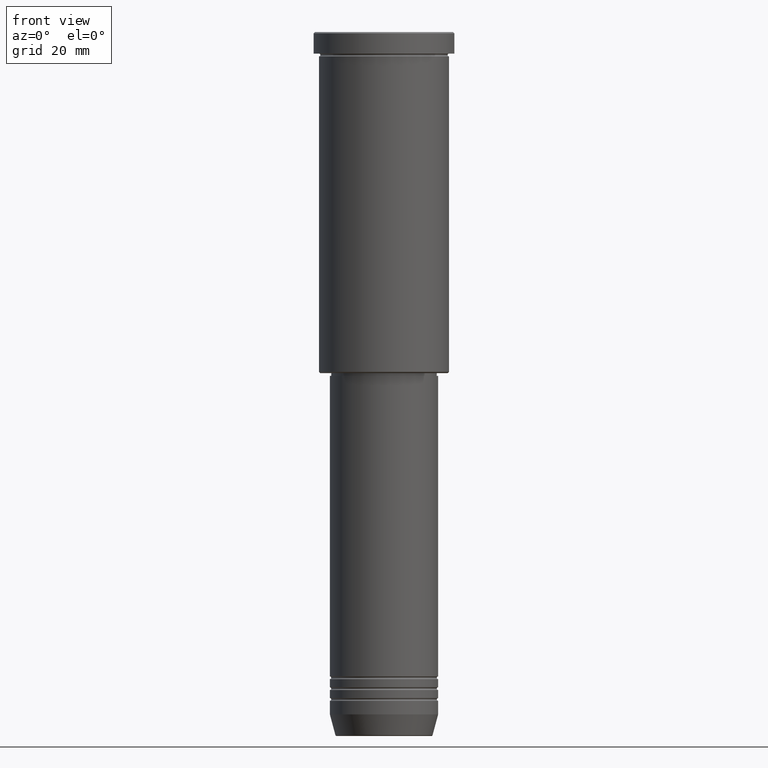
[diagram: clean part render]
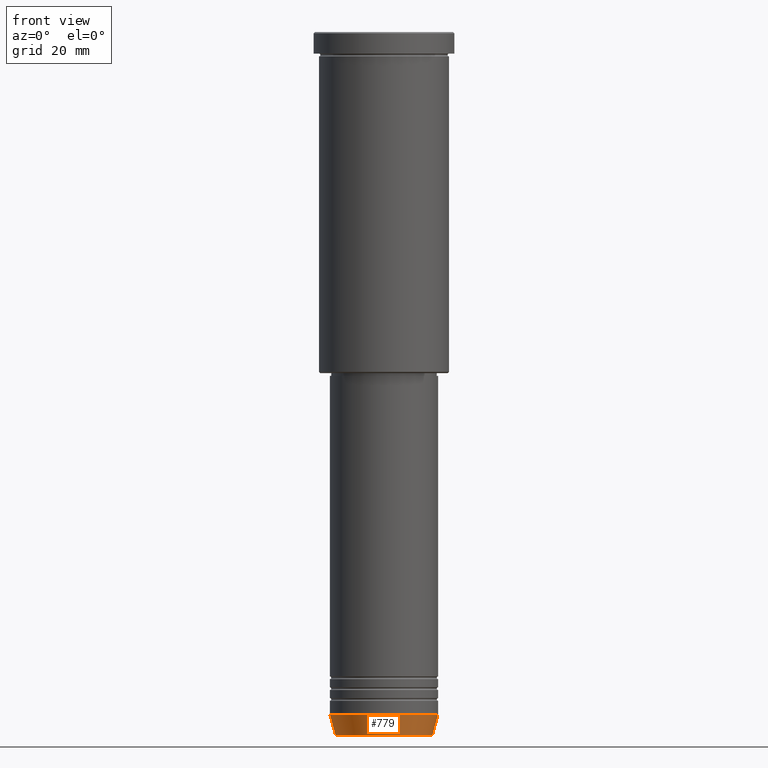
[diagram: same view with one face highlighted and labeled with its STEP entity id]
A machine part, front view. The second image highlights one B-rep face of the part: STEP entity #779.
In plain terms, the highlighted conical surface has half-angle 15 deg.
Its self-contained STEP definition (entity closure, byte-faithful):
#3 = ORIENTED_EDGE ( 'NONE', *, *, #1071, .F. ) ;
#19 = DIRECTION ( 'NONE',  ( -0.2588190451025212391, 3.169619151431771721E-17, 0.9659258262890680902 ) ) ;
#41 = CARTESIAN_POINT ( 'NONE',  ( -20.00000000000000355, 2.449293598294706907E-15, -252.0000000000000000 ) ) ;
#60 = LINE ( 'NONE', #538, #1168 ) ;
#145 = VECTOR ( 'NONE', #19, 1000.000000000000114 ) ;
#147 = CIRCLE ( 'NONE', #627, 20.00000000000000355 ) ;
#175 = VERTEX_POINT ( 'NONE', #839 ) ;
#185 = CARTESIAN_POINT ( 'NONE',  ( 0.000000000000000000, 0.000000000000000000, -252.0000000000000000 ) ) ;
#217 = VERTEX_POINT ( 'NONE', #401 ) ;
#239 = EDGE_LOOP ( 'NONE', ( #434, #863, #620, #3 ) ) ;
#324 = FACE_OUTER_BOUND ( 'NONE', #239, .T. ) ;
#388 = DIRECTION ( 'NONE',  ( 1.000000000000000000, 0.000000000000000000, 0.000000000000000000 ) ) ;
#396 = DIRECTION ( 'NONE',  ( -0.000000000000000000, -0.000000000000000000, 1.000000000000000000 ) ) ;
#401 = CARTESIAN_POINT ( 'NONE',  ( 17.95570587970608045, 0.000000000000000000, -259.6294095225512706 ) ) ;
#434 = ORIENTED_EDGE ( 'NONE', *, *, #757, .F. ) ;
#461 = DIRECTION ( 'NONE',  ( 1.000000000000000000, 0.000000000000000000, 0.000000000000000000 ) ) ;
#487 = EDGE_CURVE ( 'NONE', #217, #175, #60, .T. ) ;
#495 = CARTESIAN_POINT ( 'NONE',  ( -20.00000000000000355, 2.449293598294706907E-15, -252.0000000000000000 ) ) ;
#501 = CIRCLE ( 'NONE', #943, 17.95570587970608045 ) ;
#538 = CARTESIAN_POINT ( 'NONE',  ( 20.00000000000000355, 0.000000000000000000, -252.0000000000000000 ) ) ;
#604 = CONICAL_SURFACE ( 'NONE', #1095, 20.00000000000000355, 0.2617993877991499629 ) ;
#620 = ORIENTED_EDGE ( 'NONE', *, *, #487, .T. ) ;
#627 = AXIS2_PLACEMENT_3D ( 'NONE', #185, #1004, #461 ) ;
#656 = EDGE_CURVE ( 'NONE', #712, #217, #501, .T. ) ;
#681 = LINE ( 'NONE', #41, #145 ) ;
#702 = VERTEX_POINT ( 'NONE', #495 ) ;
#712 = VERTEX_POINT ( 'NONE', #1127 ) ;
#748 = DIRECTION ( 'NONE',  ( -0.000000000000000000, -0.000000000000000000, 1.000000000000000000 ) ) ;
#757 = EDGE_CURVE ( 'NONE', #712, #702, #681, .T. ) ;
#779 = ADVANCED_FACE ( 'NONE', ( #324 ), #604, .T. ) ;
#825 = DIRECTION ( 'NONE',  ( 1.000000000000000000, 0.000000000000000000, 0.000000000000000000 ) ) ;
#839 = CARTESIAN_POINT ( 'NONE',  ( 20.00000000000000355, 0.000000000000000000, -252.0000000000000000 ) ) ;
#863 = ORIENTED_EDGE ( 'NONE', *, *, #656, .T. ) ;
#901 = DIRECTION ( 'NONE',  ( 0.2588190451025212391, 0.000000000000000000, 0.9659258262890680902 ) ) ;
#940 = CARTESIAN_POINT ( 'NONE',  ( 0.000000000000000000, 0.000000000000000000, -252.0000000000000000 ) ) ;
#943 = AXIS2_PLACEMENT_3D ( 'NONE', #1107, #748, #825 ) ;
#1004 = DIRECTION ( 'NONE',  ( -0.000000000000000000, -0.000000000000000000, 1.000000000000000000 ) ) ;
#1071 = EDGE_CURVE ( 'NONE', #702, #175, #147, .T. ) ;
#1095 = AXIS2_PLACEMENT_3D ( 'NONE', #940, #396, #388 ) ;
#1107 = CARTESIAN_POINT ( 'NONE',  ( 0.000000000000000000, 0.000000000000000000, -259.6294095225512706 ) ) ;
#1127 = CARTESIAN_POINT ( 'NONE',  ( -17.95570587970608045, 2.324116685748021371E-15, -259.6294095225512706 ) ) ;
#1168 = VECTOR ( 'NONE', #901, 1000.000000000000114 ) ;